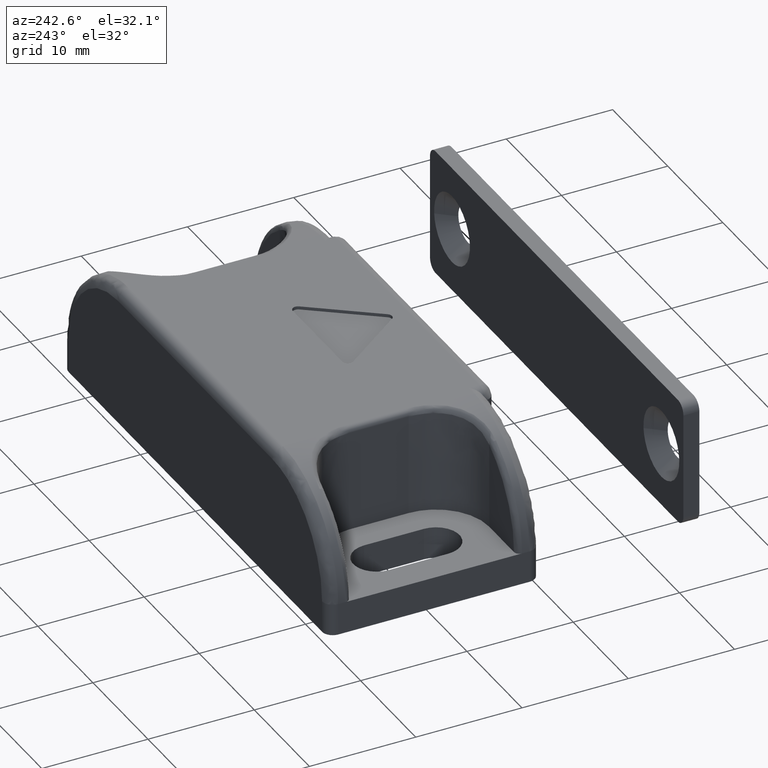
[diagram: clean part render]
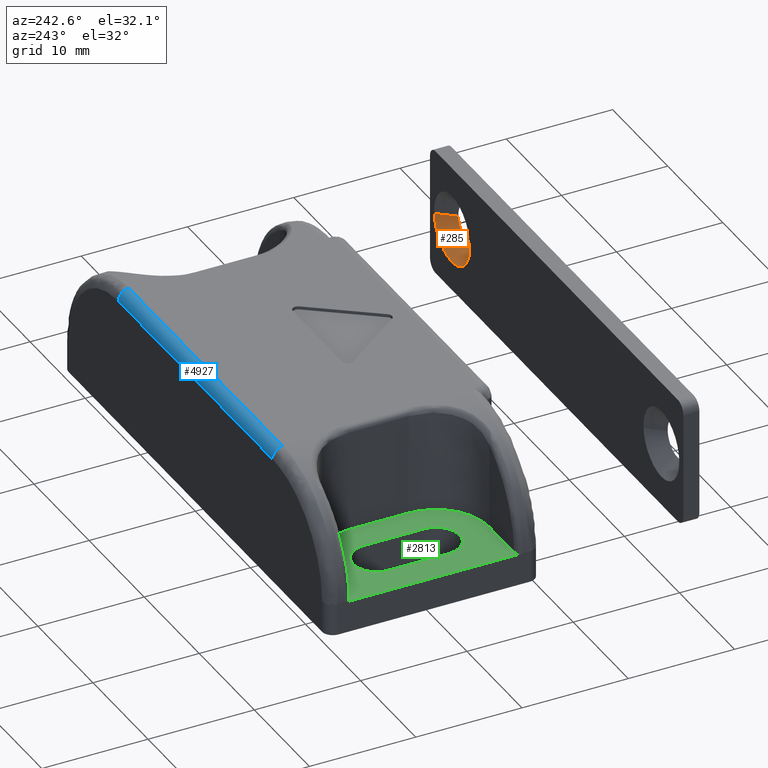
[diagram: same view with three faces highlighted in distinct colors, each labeled with its STEP entity id]
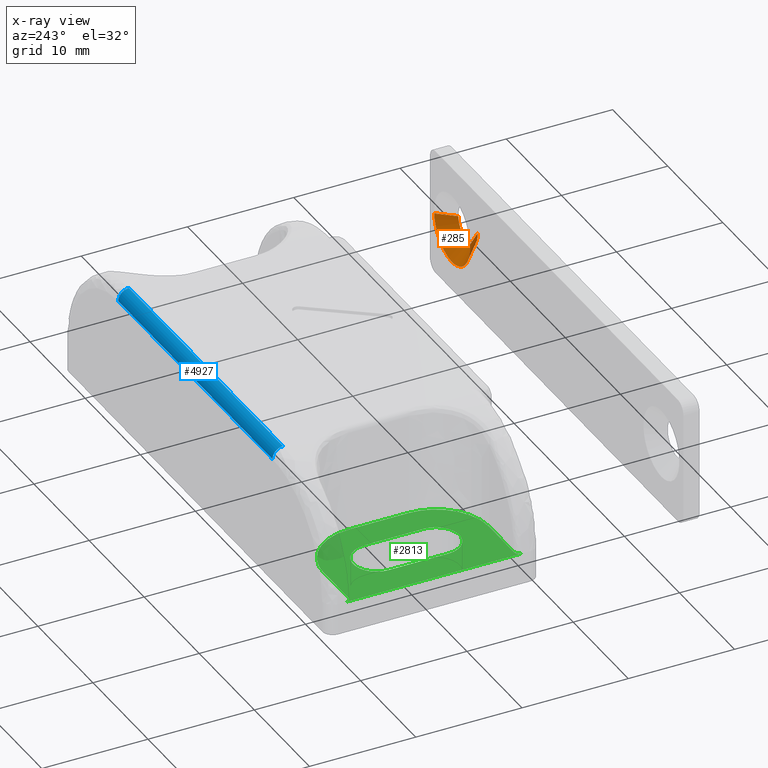
[diagram: x-ray of the same camera — body ghosted, the three highlighted faces saturated]
A machine part, auxiliary view with three faces highlighted in distinct colors.
The next image is the same camera in x-ray (body ghosted, the three faces saturated) — at least one of them is partly hidden behind the body in this view.
Their STEP definitions:

[orange] entity #285 — the highlighted face is a freeform B-spline surface patch.
#187=CARTESIAN_POINT('',(20.707220934019620,-25.537500000000009,6.365638798566089));
#188=CARTESIAN_POINT('',(20.572859732585712,-25.537500000000019,4.658417864548419));
#189=CARTESIAN_POINT('',(18.865638798568039,-25.537500000000009,4.792779065982330));
#190=CARTESIAN_POINT('',(17.158417864550373,-25.537500000000019,4.927140267416241));
#191=CARTESIAN_POINT('',(17.292779065984281,-25.537500000000009,6.634361201433911));
#192=CARTESIAN_POINT('',(22.278300344649988,-23.961562499999690,6.241992167392462));
#193=CARTESIAN_POINT('',(22.020292512042449,-23.961562499999683,2.963691822744420));
#194=CARTESIAN_POINT('',(18.741992167394411,-23.961562499999690,3.221699655351958));
#195=CARTESIAN_POINT('',(15.463691822746368,-23.961562499999683,3.479707487959495));
#196=CARTESIAN_POINT('',(15.721699655353911,-23.961562499999690,6.758007832607538));
#204=(BOUNDED_SURFACE()B_SPLINE_SURFACE(2,1,((#187,#192),(#188,#193),(#189,#194),(#190,#195),(#191,#196)),.UNSPECIFIED.,.F.,.F.,.U.)B_SPLINE_SURFACE_WITH_KNOTS((3,2,3),(2,2),(0.0,5.448461646065120,10.896923292130239),(0.0,2.228712185952808),.UNSPECIFIED.)GEOMETRIC_REPRESENTATION_ITEM()RATIONAL_B_SPLINE_SURFACE(((1.0,1.0),(0.707106781186548,0.707106781186548),(1.0,1.0),(0.707106781186548,0.707106781186548),(1.0,1.0)))REPRESENTATION_ITEM('')SURFACE());
#205=CARTESIAN_POINT('',(19.000000000001950,-25.500000000000000,4.750000000000085));
#206=VERTEX_POINT('',#205);
#207=CARTESIAN_POINT('',(20.744605334037381,-25.499999999993531,6.362696582427480));
#208=VERTEX_POINT('',#207);
#209=CARTESIAN_POINT('',(19.000000000001950,-25.500000000000000,4.750000000000085));
#210=CARTESIAN_POINT('',(20.617683360361980,-25.499999999996760,4.749999999999835));
#211=CARTESIAN_POINT('',(20.744605334037374,-25.499999999993534,6.362696582427480));
#219=(BOUNDED_CURVE()B_SPLINE_CURVE(2,(#209,#210,#211),.UNSPECIFIED.,.F.,.U.)B_SPLINE_CURVE_WITH_KNOTS((3,3),(0.0,0.236331300628021),.UNSPECIFIED.)CURVE()GEOMETRIC_REPRESENTATION_ITEM()RATIONAL_B_SPLINE_CURVE((1.0,0.723120658610757,0.969723356161911))REPRESENTATION_ITEM(''));
#220=EDGE_CURVE('',#206,#208,#219,.T.);
#221=ORIENTED_EDGE('',*,*,#220,.T.);
#222=CARTESIAN_POINT('',(22.239981334647400,-23.999999999967390,6.245007938635183));
#223=VERTEX_POINT('',#222);
#224=CARTESIAN_POINT('',(20.744605334037381,-25.499999999993531,6.362696582427480));
#225=CARTESIAN_POINT('',(22.239981334647400,-23.999999999967390,6.245007938635183));
#226=QUASI_UNIFORM_CURVE('',1,(#224,#225),.UNSPECIFIED.,.F.,.U.);
#227=EDGE_CURVE('',#208,#223,#226,.T.);
#228=ORIENTED_EDGE('',*,*,#227,.T.);
#229=CARTESIAN_POINT('',(19.000000000001950,-23.999999999999702,3.250000000000000));
#230=VERTEX_POINT('',#229);
#231=CARTESIAN_POINT('',(19.000000000001950,-23.999999999999702,3.250000000000000));
#232=CARTESIAN_POINT('',(22.004269097677692,-23.999999999983544,3.249999999998734));
#233=CARTESIAN_POINT('',(22.239981334647407,-23.999999999967386,6.245007938635183));
#241=(BOUNDED_CURVE()B_SPLINE_CURVE(2,(#231,#232,#233),.UNSPECIFIED.,.F.,.U.)B_SPLINE_CURVE_WITH_KNOTS((3,3),(0.0,0.236331300619710),.UNSPECIFIED.)CURVE()GEOMETRIC_REPRESENTATION_ITEM()RATIONAL_B_SPLINE_CURVE((1.0,0.723120658620494,0.969723356144566))REPRESENTATION_ITEM(''));
#242=EDGE_CURVE('',#230,#223,#241,.T.);
#243=ORIENTED_EDGE('',*,*,#242,.F.);
#244=CARTESIAN_POINT('',(15.760018665356490,-23.999999999967390,6.754992061364818));
#245=VERTEX_POINT('',#244);
#246=CARTESIAN_POINT('',(15.760018665356490,-23.999999999967390,6.754992061364818));
#247=CARTESIAN_POINT('',(15.749999999970328,-23.999999999967979,6.627692847901382));
#248=CARTESIAN_POINT('',(15.749999999970960,-23.999999999968612,6.500000000002441));
#249=CARTESIAN_POINT('',(15.749999999987056,-23.999999999984755,3.250000000001173));
#250=CARTESIAN_POINT('',(19.000000000001950,-23.999999999999702,3.250000000000000));
#258=(BOUNDED_CURVE()B_SPLINE_CURVE(2,(#246,#247,#248,#249,#250),.UNSPECIFIED.,.F.,.U.)B_SPLINE_CURVE_WITH_KNOTS((3,2,3),(0.736331300619710,0.750000000000000,1.0),.UNSPECIFIED.)CURVE()GEOMETRIC_REPRESENTATION_ITEM()RATIONAL_B_SPLINE_CURVE((0.969723356144566,0.983986122566053,1.0,0.707106781186547,1.0))REPRESENTATION_ITEM(''));
#259=EDGE_CURVE('',#245,#230,#258,.T.);
#260=ORIENTED_EDGE('',*,*,#259,.F.);
#261=CARTESIAN_POINT('',(17.255394665966520,-25.499999999993531,6.637303417572521));
#262=VERTEX_POINT('',#261);
#263=CARTESIAN_POINT('',(17.255394665966520,-25.499999999993531,6.637303417572521));
#264=CARTESIAN_POINT('',(15.760018665356490,-23.999999999967390,6.754992061364818));
#265=QUASI_UNIFORM_CURVE('',1,(#263,#264),.UNSPECIFIED.,.F.,.U.);
#266=EDGE_CURVE('',#262,#245,#265,.T.);
#267=ORIENTED_EDGE('',*,*,#266,.F.);
#268=CARTESIAN_POINT('',(17.255394665966516,-25.499999999993538,6.637303417572521));
#269=CARTESIAN_POINT('',(17.249999999995804,-25.499999999993655,6.568757687288170));
#270=CARTESIAN_POINT('',(17.249999999995929,-25.499999999993779,6.500000000000481));
#271=CARTESIAN_POINT('',(17.249999999999101,-25.499999999997012,4.750000000000315));
#272=CARTESIAN_POINT('',(19.000000000001950,-25.500000000000000,4.750000000000085));
#280=(BOUNDED_CURVE()B_SPLINE_CURVE(2,(#268,#269,#270,#271,#272),.UNSPECIFIED.,.F.,.U.)B_SPLINE_CURVE_WITH_KNOTS((3,2,3),(0.736331300628021,0.750000000000000,1.0),.UNSPECIFIED.)CURVE()GEOMETRIC_REPRESENTATION_ITEM()RATIONAL_B_SPLINE_CURVE((0.969723356161911,0.983986122575791,1.0,0.707106781186548,1.0))REPRESENTATION_ITEM(''));
#281=EDGE_CURVE('',#262,#206,#280,.T.);
#282=ORIENTED_EDGE('',*,*,#281,.T.);
#283=EDGE_LOOP('',(#221,#228,#243,#260,#267,#282));
#284=FACE_OUTER_BOUND('',#283,.T.);
#285=ADVANCED_FACE('',(#284),#204,.F.);

[blue] entity #4927 — the highlighted face is a freeform B-spline surface patch.
#2632=CARTESIAN_POINT('',(13.999999999994500,10.0,12.0));
#2633=VERTEX_POINT('',#2632);
#2670=CARTESIAN_POINT('',(-13.999999999996801,10.0,12.0));
#2671=VERTEX_POINT('',#2670);
#2685=CARTESIAN_POINT('',(-13.999999999996801,10.0,12.0));
#2686=CARTESIAN_POINT('',(13.999999999994500,10.0,12.0));
#2687=QUASI_UNIFORM_CURVE('',1,(#2685,#2686),.UNSPECIFIED.,.F.,.U.);
#2688=EDGE_CURVE('',#2671,#2633,#2687,.T.);
#4856=CARTESIAN_POINT('',(13.999999999994261,9.0,13.0));
#4857=VERTEX_POINT('',#4856);
#4858=CARTESIAN_POINT('',(13.999999999994500,9.999999999999998,12.0));
#4859=CARTESIAN_POINT('',(13.999999999994269,9.999999999999998,13.000000000000004));
#4860=CARTESIAN_POINT('',(13.999999999994269,9.0,13.0));
#4868=(BOUNDED_CURVE()B_SPLINE_CURVE(2,(#4858,#4859,#4860),.UNSPECIFIED.,.F.,.U.)CURVE()GEOMETRIC_REPRESENTATION_ITEM()QUASI_UNIFORM_CURVE()RATIONAL_B_SPLINE_CURVE((1.0,0.707106781186548,1.0))REPRESENTATION_ITEM(''));
#4869=EDGE_CURVE('',#2633,#4857,#4868,.T.);
#4889=CARTESIAN_POINT('',(14.699999999994279,9.999048221581857,11.956380612634661));
#4890=CARTESIAN_POINT('',(-14.717499999996580,9.999048221581857,11.956380612634661));
#4891=CARTESIAN_POINT('',(14.699999999994281,10.047934490935981,13.076060264459036));
#4892=CARTESIAN_POINT('',(-14.717499999996578,10.047934490935981,13.076060264459036));
#4893=CARTESIAN_POINT('',(14.699999999994279,8.929941907956474,12.997542913231912));
#4894=CARTESIAN_POINT('',(-14.717499999996575,8.929941907956474,12.997542913231912));
#4902=(BOUNDED_SURFACE()B_SPLINE_SURFACE(1,2,((#4889,#4891,#4893),(#4890,#4892,#4894)),.UNSPECIFIED.,.F.,.F.,.U.)B_SPLINE_SURFACE_WITH_KNOTS((2,2),(3,3),(0.0,29.417499999990859),(0.0,0.994386594966985),.UNSPECIFIED.)GEOMETRIC_REPRESENTATION_ITEM()RATIONAL_B_SPLINE_SURFACE(((1.0,0.664513898535122,0.996233561259061),(1.0,0.664513898535122,0.996233561259061)))REPRESENTATION_ITEM('')SURFACE());
#4903=CARTESIAN_POINT('',(-13.999999999996801,9.0,13.0));
#4904=VERTEX_POINT('',#4903);
#4905=CARTESIAN_POINT('',(-13.999999999996801,9.999999999999998,12.0));
#4906=CARTESIAN_POINT('',(-13.999999999996799,9.999999999999998,13.000000000000004));
#4907=CARTESIAN_POINT('',(-13.999999999996801,9.0,13.0));
#4915=(BOUNDED_CURVE()B_SPLINE_CURVE(2,(#4905,#4906,#4907),.UNSPECIFIED.,.F.,.U.)CURVE()GEOMETRIC_REPRESENTATION_ITEM()QUASI_UNIFORM_CURVE()RATIONAL_B_SPLINE_CURVE((1.0,0.707106781186548,1.0))REPRESENTATION_ITEM(''));
#4916=EDGE_CURVE('',#2671,#4904,#4915,.T.);
#4917=ORIENTED_EDGE('',*,*,#4916,.T.);
#4918=CARTESIAN_POINT('',(13.999999999994261,9.0,13.0));
#4919=CARTESIAN_POINT('',(-13.999999999996801,9.0,13.0));
#4920=QUASI_UNIFORM_CURVE('',1,(#4918,#4919),.UNSPECIFIED.,.F.,.U.);
#4921=EDGE_CURVE('',#4857,#4904,#4920,.T.);
#4922=ORIENTED_EDGE('',*,*,#4921,.F.);
#4923=ORIENTED_EDGE('',*,*,#4869,.F.);
#4924=ORIENTED_EDGE('',*,*,#2688,.F.);
#4925=EDGE_LOOP('',(#4917,#4922,#4923,#4924));
#4926=FACE_OUTER_BOUND('',#4925,.T.);
#4927=ADVANCED_FACE('',(#4926),#4902,.T.);

[green] entity #2813 — the highlighted face is a freeform B-spline surface patch.
#1792=CARTESIAN_POINT('',(-21.200000000003499,-2.799999999999785,3.000000000036530));
#1793=VERTEX_POINT('',#1792);
#1799=CARTESIAN_POINT('',(-16.800000000003500,-2.799999999999785,3.000000000036530));
#1800=VERTEX_POINT('',#1799);
#1801=CARTESIAN_POINT('',(-21.200000000003499,-2.799999999999785,3.000000000036530));
#1802=CARTESIAN_POINT('',(-21.200059572047909,-2.988985419402412,3.000000000036525));
#1803=CARTESIAN_POINT('',(-21.160316624323059,-3.294925326039674,3.000000000036529));
#1804=CARTESIAN_POINT('',(-21.016831228458329,-3.703828515175518,3.000000000036535));
#1805=CARTESIAN_POINT('',(-20.846966727571889,-4.012448219548163,3.000000000036533));
#1806=CARTESIAN_POINT('',(-20.608245134945800,-4.318358254916793,3.000000000036526));
#1807=CARTESIAN_POINT('',(-20.291400387977589,-4.602035945897747,3.000000000036534));
#1808=CARTESIAN_POINT('',(-19.850215561347021,-4.851983674024240,3.000000000036539));
#1809=CARTESIAN_POINT('',(-19.378775599297231,-4.985563844655008,3.000000000036527));
#1810=CARTESIAN_POINT('',(-18.945638774408451,-5.009453738429939,3.000000000036530));
#1811=CARTESIAN_POINT('',(-18.568967785980380,-4.967672499374573,3.000000000036559));
#1812=CARTESIAN_POINT('',(-18.125453564323561,-4.842124088427003,3.000000000036403));
#1813=CARTESIAN_POINT('',(-17.682213584515861,-4.590993018035683,3.000000000036832));
#1814=CARTESIAN_POINT('',(-17.284822563892689,-4.207904738939339,3.000000000036442));
#1815=CARTESIAN_POINT('',(-17.007885597096390,-3.782289858680095,3.000000000036571));
#1816=CARTESIAN_POINT('',(-16.836930401473740,-3.294946920501253,3.000000000036534));
#1817=CARTESIAN_POINT('',(-16.799974143471498,-2.961980130382357,3.000000000036417));
#1818=CARTESIAN_POINT('',(-16.800000000003500,-2.799999999999785,3.000000000036530));
#1819=B_SPLINE_CURVE_WITH_KNOTS('',3,(#1801,#1802,#1803,#1804,#1805,#1806,#1807,#1808,#1809,#1810,#1811,#1812,#1813,#1814,#1815,#1816,#1817,#1818),.UNSPECIFIED.,.F.,.U.,(4,1,1,1,1,1,1,1,1,1,1,1,1,1,1,4),(0.000000170033420,0.566940588819438,0.917921801149857,1.295914393750800,1.619893029427882,2.078866167262815,2.564853146117498,3.131824927355310,3.536755010492175,3.860722329323065,4.265716633679636,4.913677451423384,5.372653603344386,5.912617379903241,6.425606553744395,6.911547204700101),.UNSPECIFIED.);
#1820=EDGE_CURVE('',#1793,#1800,#1819,.T.);
#1842=CARTESIAN_POINT('',(-21.200000000002301,2.800000000000095,3.000000000036530));
#1843=VERTEX_POINT('',#1842);
#1849=CARTESIAN_POINT('',(-21.200000000002301,2.800000000000095,3.000000000036530));
#1850=CARTESIAN_POINT('',(-21.200000000003499,-2.799999999999785,3.000000000036530));
#1851=QUASI_UNIFORM_CURVE('',1,(#1849,#1850),.UNSPECIFIED.,.F.,.U.);
#1852=EDGE_CURVE('',#1843,#1793,#1851,.T.);
#1899=CARTESIAN_POINT('',(-16.800000000002250,2.800000000000095,3.000000000036530));
#1900=VERTEX_POINT('',#1899);
#1906=CARTESIAN_POINT('',(-16.800000000002250,2.800000000000095,3.000000000036530));
#1907=CARTESIAN_POINT('',(-16.799977033698859,2.961979648967807,3.000000000036536));
#1908=CARTESIAN_POINT('',(-16.836922810493078,3.294946562102949,3.000000000036519));
#1909=CARTESIAN_POINT('',(-16.986914171685850,3.722422900461682,3.000000000036547));
#1910=CARTESIAN_POINT('',(-17.193670295881549,4.072152599387451,3.000000000036499));
#1911=CARTESIAN_POINT('',(-17.459066329040741,4.391592210459012,3.000000000036570));
#1912=CARTESIAN_POINT('',(-17.834255502906341,4.691900503816167,3.000000000036478));
#1913=CARTESIAN_POINT('',(-18.271199024894269,4.891996702050799,3.000000000036537));
#1914=CARTESIAN_POINT('',(-18.728610092606981,4.997647206918711,3.000000000036551));
#1915=CARTESIAN_POINT('',(-19.190472550971169,5.011854016328299,3.000000000036476));
#1916=CARTESIAN_POINT('',(-19.705250166062250,4.906170605683385,3.000000000036619));
#1917=CARTESIAN_POINT('',(-20.123283569075650,4.708448899280575,3.000000000036399));
#1918=CARTESIAN_POINT('',(-20.449430878994949,4.466513398309115,3.000000000036509));
#1919=CARTESIAN_POINT('',(-20.684173357804809,4.228868880515468,3.000000000036562));
#1920=CARTESIAN_POINT('',(-20.922088043780469,3.899778934422207,3.000000000036468));
#1921=CARTESIAN_POINT('',(-21.137338097128868,3.429903730383907,3.000000000036833));
#1922=CARTESIAN_POINT('',(-21.200096558436378,3.024985794838861,3.000000000035833));
#1923=CARTESIAN_POINT('',(-21.200000000002301,2.800000000000095,3.000000000036530));
#1924=B_SPLINE_CURVE_WITH_KNOTS('',3,(#1906,#1907,#1908,#1909,#1910,#1911,#1912,#1913,#1914,#1915,#1916,#1917,#1918,#1919,#1920,#1921,#1922,#1923),.UNSPECIFIED.,.F.,.U.,(4,1,1,1,1,1,1,1,1,1,1,1,1,1,1,4),(0.000000170090687,0.485939635807597,0.998922497431208,1.349905382364107,1.700889989325206,2.240863361446135,2.780839676992331,3.131824927391030,3.644749587917279,4.157703510800427,4.697691373980877,5.021667728155252,5.372653603359586,5.696628429901692,6.236607287647940,6.911547204699534),.UNSPECIFIED.);
#1925=EDGE_CURVE('',#1900,#1843,#1924,.T.);
#1942=CARTESIAN_POINT('',(-16.800000000003500,-2.799999999999785,3.000000000036530));
#1943=CARTESIAN_POINT('',(-16.800000000002250,2.800000000000095,3.000000000036530));
#1944=QUASI_UNIFORM_CURVE('',1,(#1942,#1943),.UNSPECIFIED.,.F.,.U.);
#1945=EDGE_CURVE('',#1800,#1900,#1944,.T.);
#2222=CARTESIAN_POINT('',(-13.999999999999419,-2.800000000006720,3.000000000036530));
#2223=VERTEX_POINT('',#2222);
#2238=CARTESIAN_POINT('',(-14.000000000000661,2.800000000001320,3.000000000036530));
#2239=VERTEX_POINT('',#2238);
#2245=CARTESIAN_POINT('',(-13.999999999999419,-2.800000000006720,3.000000000036530));
#2246=CARTESIAN_POINT('',(-14.000000000000661,2.800000000001320,3.000000000036530));
#2247=QUASI_UNIFORM_CURVE('',1,(#2245,#2246),.UNSPECIFIED.,.F.,.U.);
#2248=EDGE_CURVE('',#2223,#2239,#2247,.T.);
#2267=CARTESIAN_POINT('',(-18.999999999999400,-7.800000000008990,3.000000000036530));
#2268=VERTEX_POINT('',#2267);
#2323=CARTESIAN_POINT('',(-18.999999999999400,-7.800000000008990,3.000000000036530));
#2324=CARTESIAN_POINT('',(-18.570471101592009,-7.800131266231521,3.000000000036536));
#2325=CARTESIAN_POINT('',(-17.916046773822220,-7.715119588009994,3.000000000036534));
#2326=CARTESIAN_POINT('',(-17.022484677958300,-7.413804443014938,3.000000000036528));
#2327=CARTESIAN_POINT('',(-16.311811124493179,-7.045105616622583,3.000000000036502));
#2328=CARTESIAN_POINT('',(-15.625642334859901,-6.523032755815999,3.000000000036556));
#2329=CARTESIAN_POINT('',(-15.066777302172040,-5.921409494545348,3.000000000036527));
#2330=CARTESIAN_POINT('',(-14.599617682704080,-5.222267961656887,3.000000000036517));
#2331=CARTESIAN_POINT('',(-14.295833010363610,-4.548122774232052,3.000000000036545));
#2332=CARTESIAN_POINT('',(-14.061270650722690,-3.720362081595238,3.000000000036522));
#2333=CARTESIAN_POINT('',(-13.999940794821679,-3.168160649425647,3.000000000036478));
#2334=CARTESIAN_POINT('',(-13.999999999999419,-2.800000000006720,3.000000000036530));
#2335=B_SPLINE_CURVE_WITH_KNOTS('',3,(#2323,#2324,#2325,#2326,#2327,#2328,#2329,#2330,#2331,#2332,#2333,#2334),.UNSPECIFIED.,.F.,.U.,(4,1,1,1,1,1,1,1,1,4),(0.000000013332587,1.288545101303761,1.963507781216847,2.822545517483083,3.681586362935515,4.540597113335597,5.276921602545776,6.197324411645096,6.749558382607771,7.854030914377945),.UNSPECIFIED.);
#2336=EDGE_CURVE('',#2268,#2223,#2335,.T.);
#2346=CARTESIAN_POINT('',(-23.499999999996149,-7.800000000003199,3.000000000036495));
#2347=VERTEX_POINT('',#2346);
#2348=CARTESIAN_POINT('',(-23.499999999996149,-7.800000000003199,3.000000000036495));
#2349=CARTESIAN_POINT('',(-18.999999999999400,-7.800000000008990,3.000000000036530));
#2350=QUASI_UNIFORM_CURVE('',1,(#2348,#2349),.UNSPECIFIED.,.F.,.U.);
#2351=EDGE_CURVE('',#2347,#2268,#2350,.T.);
#2375=CARTESIAN_POINT('',(-19.000000000002149,7.799999999990799,3.000000000036530));
#2376=VERTEX_POINT('',#2375);
#2384=CARTESIAN_POINT('',(-23.499999999996550,7.799999999988810,3.000000000036495));
#2385=VERTEX_POINT('',#2384);
#2399=CARTESIAN_POINT('',(-19.000000000002149,7.799999999990799,3.000000000036530));
#2400=CARTESIAN_POINT('',(-23.499999999996550,7.799999999988810,3.000000000036495));
#2401=QUASI_UNIFORM_CURVE('',1,(#2399,#2400),.UNSPECIFIED.,.F.,.U.);
#2402=EDGE_CURVE('',#2376,#2385,#2401,.T.);
#2469=CARTESIAN_POINT('',(-14.000000000000661,2.800000000001320,3.000000000036530));
#2470=CARTESIAN_POINT('',(-14.000000000012664,7.799999999990804,3.000000000036530));
#2471=CARTESIAN_POINT('',(-19.000000000002149,7.799999999990805,3.000000000036530));
#2479=(BOUNDED_CURVE()B_SPLINE_CURVE(2,(#2469,#2470,#2471),.UNSPECIFIED.,.F.,.U.)CURVE()GEOMETRIC_REPRESENTATION_ITEM()QUASI_UNIFORM_CURVE()RATIONAL_B_SPLINE_CURVE((1.0,0.707106781187291,1.0))REPRESENTATION_ITEM(''));
#2480=EDGE_CURVE('',#2239,#2376,#2479,.T.);
#2765=CARTESIAN_POINT('',(-24.499499980621401,9.129169967814221,3.000000000036495));
#2766=CARTESIAN_POINT('',(-13.500499751160270,9.129169967814221,3.000000000036495));
#2767=CARTESIAN_POINT('',(-24.499499980621401,-9.129170413075428,3.000000000036495));
#2768=CARTESIAN_POINT('',(-13.500499751160270,-9.129170413075428,3.000000000036495));
#2769=B_SPLINE_SURFACE_WITH_KNOTS('',1,1,((#2765,#2767),(#2766,#2768)),.UNSPECIFIED.,.F.,.F.,.U.,(2,2),(2,2),(0.0,10.999000229461130),(0.0,18.258340380889649),.UNSPECIFIED.);
#2770=ORIENTED_EDGE('',*,*,#2480,.T.);
#2771=ORIENTED_EDGE('',*,*,#2402,.T.);
#2772=CARTESIAN_POINT('',(-24.000000000003151,8.299999999988650,3.0));
#2773=VERTEX_POINT('',#2772);
#2774=CARTESIAN_POINT('',(-23.499999999996550,7.799999999988810,3.000000000036495));
#2775=CARTESIAN_POINT('',(-23.573651863253740,7.799901912444567,3.000000000023495));
#2776=CARTESIAN_POINT('',(-23.688089827137230,7.825766585445586,3.000000000007838));
#2777=CARTESIAN_POINT('',(-23.841322792544378,7.922812733573523,2.999999999998396));
#2778=CARTESIAN_POINT('',(-23.963038457326100,8.071033334305628,3.000000000001025));
#2779=CARTESIAN_POINT('',(-24.000163211482981,8.218168200002278,2.999999999999656));
#2780=CARTESIAN_POINT('',(-24.000000000003151,8.299999999988650,3.0));
#2781=B_SPLINE_CURVE_WITH_KNOTS('',3,(#2774,#2775,#2776,#2777,#2778,#2779,#2780),.UNSPECIFIED.,.F.,.U.,(4,1,1,1,4),(0.000000123592023,0.220901045041078,0.343635505664244,0.539972227226567,0.785417872190492),.UNSPECIFIED.);
#2782=EDGE_CURVE('',#2385,#2773,#2781,.T.);
#2783=ORIENTED_EDGE('',*,*,#2782,.T.);
#2784=CARTESIAN_POINT('',(-23.999999999994351,-8.300000000003161,3.000000000036495));
#2785=VERTEX_POINT('',#2784);
#2786=CARTESIAN_POINT('',(-24.000000000003151,8.299999999988650,3.0));
#2787=CARTESIAN_POINT('',(-23.999999999994351,-8.300000000003161,3.000000000036495));
#2788=QUASI_UNIFORM_CURVE('',1,(#2786,#2787),.UNSPECIFIED.,.F.,.U.);
#2789=EDGE_CURVE('',#2773,#2785,#2788,.T.);
#2790=ORIENTED_EDGE('',*,*,#2789,.T.);
#2791=CARTESIAN_POINT('',(-23.999999999994351,-8.300000000003161,3.000000000036495));
#2792=CARTESIAN_POINT('',(-24.000022251166669,-8.250910431789283,3.000000000027832));
#2793=CARTESIAN_POINT('',(-23.986031750008831,-8.156836352002129,3.000000000013750));
#2794=CARTESIAN_POINT('',(-23.932741640481961,-8.040487766764617,3.000000000002098));
#2795=CARTESIAN_POINT('',(-23.851818305775371,-7.936787718491773,2.999999999999509));
#2796=CARTESIAN_POINT('',(-23.716658829006349,-7.833905240974424,3.000000000002586));
#2797=CARTESIAN_POINT('',(-23.581849227525691,-7.799823562908784,2.999999999987337));
#2798=CARTESIAN_POINT('',(-23.499999999996149,-7.800000000003199,3.000000000036495));
#2799=B_SPLINE_CURVE_WITH_KNOTS('',3,(#2791,#2792,#2793,#2794,#2795,#2796,#2797,#2798),.UNSPECIFIED.,.F.,.U.,(4,1,1,1,1,4),(0.000000123592558,0.147263352927521,0.282268418481349,0.380455198753714,0.539972227226503,0.785417872190346),.UNSPECIFIED.);
#2800=EDGE_CURVE('',#2785,#2347,#2799,.T.);
#2801=ORIENTED_EDGE('',*,*,#2800,.T.);
#2802=ORIENTED_EDGE('',*,*,#2351,.T.);
#2803=ORIENTED_EDGE('',*,*,#2336,.T.);
#2804=ORIENTED_EDGE('',*,*,#2248,.T.);
#2805=EDGE_LOOP('',(#2770,#2771,#2783,#2790,#2801,#2802,#2803,#2804));
#2806=FACE_OUTER_BOUND('',#2805,.T.);
#2807=ORIENTED_EDGE('',*,*,#1925,.F.);
#2808=ORIENTED_EDGE('',*,*,#1945,.F.);
#2809=ORIENTED_EDGE('',*,*,#1820,.F.);
#2810=ORIENTED_EDGE('',*,*,#1852,.F.);
#2811=EDGE_LOOP('',(#2807,#2808,#2809,#2810));
#2812=FACE_BOUND('',#2811,.T.);
#2813=ADVANCED_FACE('',(#2806,#2812),#2769,.F.);